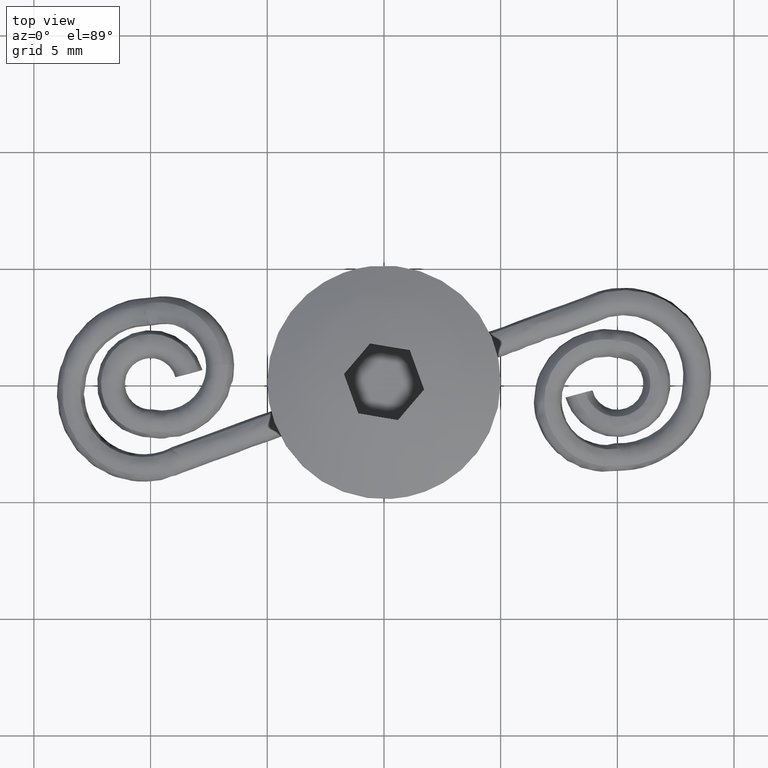
[diagram: clean part render]
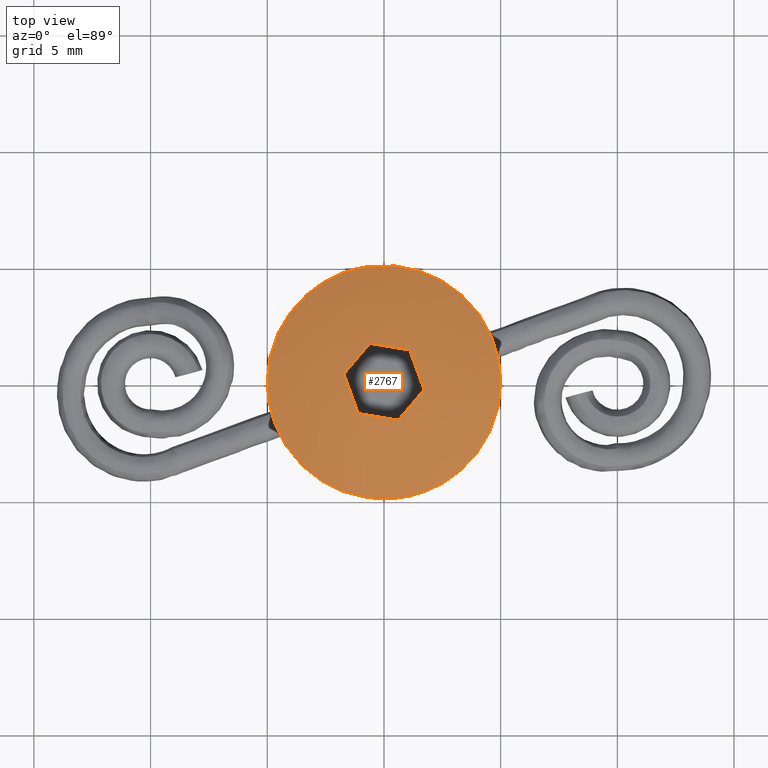
[diagram: same view with one face highlighted and labeled with its STEP entity id]
A machine part, top view. The second image highlights one B-rep face of the part: STEP entity #2767.
In plain terms, the highlighted face is a freeform B-spline surface patch.
Its self-contained STEP definition (entity closure, byte-faithful):
#85=CARTESIAN_POINT('',(-0.590168453726603,4.965047955077417,6.457708000000172));
#86=VERTEX_POINT('',#85);
#92=CARTESIAN_POINT('',(5.0,0.0,6.457708000000171));
#93=VERTEX_POINT('',#92);
#94=CARTESIAN_POINT('',(-0.590168453726603,4.965047955077417,6.457708000000172));
#95=CARTESIAN_POINT('',(-0.296119224105662,5.000000000000001,6.457708000000171));
#96=CARTESIAN_POINT('',(0.0,5.0,6.457708000000171));
#97=CARTESIAN_POINT('',(5.000000000000001,5.000000000000001,6.457708000000172));
#98=CARTESIAN_POINT('',(5.0,0.0,6.457708000000171));
#106=(BOUNDED_CURVE()B_SPLINE_CURVE(2,(#94,#95,#96,#97,#98),.UNSPECIFIED.,.F.,.U.)B_SPLINE_CURVE_WITH_KNOTS((3,2,3),(0.229562566085555,0.250000000000000,0.500000000000000),.UNSPECIFIED.)CURVE()GEOMETRIC_REPRESENTATION_ITEM()RATIONAL_B_SPLINE_CURVE((0.956026935628780,0.976056056786044,1.0,0.707106781186548,1.0))REPRESENTATION_ITEM(''));
#107=EDGE_CURVE('',#86,#93,#106,.T.);
#109=CARTESIAN_POINT('',(0.305236117837679,-4.990674394540674,6.457708000000171));
#110=VERTEX_POINT('',#109);
#111=CARTESIAN_POINT('',(5.0,0.0,6.457708000000171));
#112=CARTESIAN_POINT('',(5.0,-4.703536547378850,6.457708000000170));
#113=CARTESIAN_POINT('',(0.305236117837679,-4.990674394540674,6.457708000000171));
#121=(BOUNDED_CURVE()B_SPLINE_CURVE(2,(#111,#112,#113),.UNSPECIFIED.,.F.,.U.)B_SPLINE_CURVE_WITH_KNOTS((3,3),(0.500000000000000,0.739333189732259),.UNSPECIFIED.)CURVE()GEOMETRIC_REPRESENTATION_ITEM()RATIONAL_B_SPLINE_CURVE((1.0,0.719603726761712,0.976072529228684))REPRESENTATION_ITEM(''));
#122=EDGE_CURVE('',#93,#110,#121,.T.);
#196=CARTESIAN_POINT('',(-5.0,0.0,6.457708000000171));
#197=VERTEX_POINT('',#196);
#198=CARTESIAN_POINT('',(0.305236117837679,-4.990674394540674,6.457708000000171));
#199=CARTESIAN_POINT('',(0.152760517350363,-5.0,6.457708000000172));
#200=CARTESIAN_POINT('',(0.0,-5.0,6.457708000000171));
#201=CARTESIAN_POINT('',(-5.000000000000001,-5.000000000000001,6.457708000000172));
#202=CARTESIAN_POINT('',(-5.0,0.0,6.457708000000171));
#210=(BOUNDED_CURVE()B_SPLINE_CURVE(2,(#198,#199,#200,#201,#202),.UNSPECIFIED.,.F.,.U.)B_SPLINE_CURVE_WITH_KNOTS((3,2,3),(0.739333189732259,0.750000000000000,1.0),.UNSPECIFIED.)CURVE()GEOMETRIC_REPRESENTATION_ITEM()RATIONAL_B_SPLINE_CURVE((0.976072529228684,0.987503054424836,1.0,0.707106781186548,1.0))REPRESENTATION_ITEM(''));
#211=EDGE_CURVE('',#110,#197,#210,.T.);
#213=CARTESIAN_POINT('',(-5.0,0.0,6.457708000000171));
#214=CARTESIAN_POINT('',(-4.999999999999999,4.440875079326284,6.457708000000171));
#215=CARTESIAN_POINT('',(-0.590168453726603,4.965047955077417,6.457708000000172));
#223=(BOUNDED_CURVE()B_SPLINE_CURVE(2,(#213,#214,#215),.UNSPECIFIED.,.F.,.U.)B_SPLINE_CURVE_WITH_KNOTS((3,3),(0.0,0.229562566085555),.UNSPECIFIED.)CURVE()GEOMETRIC_REPRESENTATION_ITEM()RATIONAL_B_SPLINE_CURVE((1.0,0.731050724400503,0.956026935628780))REPRESENTATION_ITEM(''));
#224=EDGE_CURVE('',#197,#86,#223,.T.);
#2462=CARTESIAN_POINT('',(0.598545782993988,-1.644467940845225,7.339379791238771));
#2463=VERTEX_POINT('',#2462);
#2464=CARTESIAN_POINT('',(1.717840347390550,-0.334002042693247,7.339379753943979));
#2465=VERTEX_POINT('',#2464);
#2466=CARTESIAN_POINT('',(0.598545782993986,-1.644467940845224,7.339379791238775));
#2467=CARTESIAN_POINT('',(1.158193066002407,-0.989234990820729,7.397022546847330));
#2468=CARTESIAN_POINT('',(1.717840347390551,-0.334002042693247,7.339379753943983));
#2476=(BOUNDED_CURVE()B_SPLINE_CURVE(2,(#2466,#2467,#2468),.UNSPECIFIED.,.F.,.U.)CURVE()GEOMETRIC_REPRESENTATION_ITEM()QUASI_UNIFORM_CURVE()RATIONAL_B_SPLINE_CURVE((1.0,0.997770086081580,1.0))REPRESENTATION_ITEM(''));
#2477=EDGE_CURVE('',#2463,#2465,#2476,.T.);
#2498=CARTESIAN_POINT('',(-1.101235208299936,-1.360066548372026,7.339381027988420));
#2499=VERTEX_POINT('',#2498);
#2500=CARTESIAN_POINT('',(-1.101235208299934,-1.360066548372025,7.339381027988419));
#2501=CARTESIAN_POINT('',(-0.251344671854642,-1.502267251434857,7.397023149545955));
#2502=CARTESIAN_POINT('',(0.598545782993988,-1.644467940845222,7.339379791238770));
#2510=(BOUNDED_CURVE()B_SPLINE_CURVE(2,(#2500,#2501,#2502),.UNSPECIFIED.,.F.,.U.)CURVE()GEOMETRIC_REPRESENTATION_ITEM()QUASI_UNIFORM_CURVE()RATIONAL_B_SPLINE_CURVE((1.0,0.997770087514857,1.0))REPRESENTATION_ITEM(''));
#2511=EDGE_CURVE('',#2499,#2463,#2510,.T.);
#2528=CARTESIAN_POINT('',(-1.717824513693760,0.333987521037533,7.339382241958940));
#2529=VERTEX_POINT('',#2528);
#2530=CARTESIAN_POINT('',(-1.717824513693759,0.333987521037536,7.339382241958952));
#2531=CARTESIAN_POINT('',(-1.409529846469987,-0.513039553579205,7.402455767530223));
#2532=CARTESIAN_POINT('',(-1.101235208299936,-1.360066548372026,7.339381027988434));
#2540=(BOUNDED_CURVE()B_SPLINE_CURVE(2,(#2530,#2531,#2532),.UNSPECIFIED.,.F.,.U.)CURVE()GEOMETRIC_REPRESENTATION_ITEM()QUASI_UNIFORM_CURVE()RATIONAL_B_SPLINE_CURVE((1.0,0.997560742215219,1.0))REPRESENTATION_ITEM(''));
#2541=EDGE_CURVE('',#2529,#2499,#2540,.T.);
#2558=CARTESIAN_POINT('',(-0.598530233882938,1.644454224518085,7.339382264729601));
#2559=VERTEX_POINT('',#2558);
#2560=CARTESIAN_POINT('',(-0.598530233882939,1.644454224518085,7.339382264729601));
#2561=CARTESIAN_POINT('',(-1.158177374282982,0.989220872198695,7.397025045098943));
#2562=CARTESIAN_POINT('',(-1.717824513693759,0.333987521037534,7.339382241958932));
#2570=(BOUNDED_CURVE()B_SPLINE_CURVE(2,(#2560,#2561,#2562),.UNSPECIFIED.,.F.,.U.)CURVE()GEOMETRIC_REPRESENTATION_ITEM()QUASI_UNIFORM_CURVE()RATIONAL_B_SPLINE_CURVE((1.0,0.997770085834906,1.0))REPRESENTATION_ITEM(''));
#2571=EDGE_CURVE('',#2559,#2529,#2570,.T.);
#2588=CARTESIAN_POINT('',(1.101251343466304,1.360053483696012,7.339381027988420));
#2589=VERTEX_POINT('',#2588);
#2590=CARTESIAN_POINT('',(1.101251343466304,1.360053483696010,7.339381027988425));
#2591=CARTESIAN_POINT('',(0.251360595589766,1.502253847280872,7.397024412229654));
#2592=CARTESIAN_POINT('',(-0.598530233882941,1.644454224518083,7.339382264729609));
#2600=(BOUNDED_CURVE()B_SPLINE_CURVE(2,(#2590,#2591,#2592),.UNSPECIFIED.,.F.,.U.)CURVE()GEOMETRIC_REPRESENTATION_ITEM()QUASI_UNIFORM_CURVE()RATIONAL_B_SPLINE_CURVE((1.0,0.997770086728162,1.0))REPRESENTATION_ITEM(''));
#2601=EDGE_CURVE('',#2589,#2559,#2600,.T.);
#2618=CARTESIAN_POINT('',(1.717840347390551,-0.334002042693246,7.339379753943978));
#2619=CARTESIAN_POINT('',(1.409545497257030,0.513025546340401,7.402454663235786));
#2620=CARTESIAN_POINT('',(1.101251343466304,1.360053483696012,7.339381027988420));
#2628=(BOUNDED_CURVE()B_SPLINE_CURVE(2,(#2618,#2619,#2620),.UNSPECIFIED.,.F.,.U.)CURVE()GEOMETRIC_REPRESENTATION_ITEM()QUASI_UNIFORM_CURVE()RATIONAL_B_SPLINE_CURVE((1.0,0.997560738332390,1.0))REPRESENTATION_ITEM(''));
#2629=EDGE_CURVE('',#2465,#2589,#2628,.T.);
#2729=CARTESIAN_POINT('',(-5.214791082462605,-5.214675901094549,5.163459221320986));
#2730=CARTESIAN_POINT('',(-2.727746851021219,-5.455373204170503,6.257661525468747));
#2731=CARTESIAN_POINT('',(2.727746738931728,-5.455373204170503,6.257661525468747));
#2732=CARTESIAN_POINT('',(5.214790887083911,-5.214675920003387,5.163459307279972));
#2733=CARTESIAN_POINT('',(-5.455482578385319,-2.727681040379543,6.257610958793269));
#2734=CARTESIAN_POINT('',(-2.859739960952675,-2.859676796627249,7.457708000000162));
#2735=CARTESIAN_POINT('',(2.859739843439279,-2.859676796627249,7.457708000000162));
#2736=CARTESIAN_POINT('',(5.455482374901865,-2.727681050726851,6.257611052870342));
#2737=CARTESIAN_POINT('',(-5.455482578385319,2.727696508697612,6.257610958793275));
#2738=CARTESIAN_POINT('',(-2.859739960952675,2.859693013475775,7.457708000000165));
#2739=CARTESIAN_POINT('',(2.859739843439279,2.859693013475775,7.457708000000165));
#2740=CARTESIAN_POINT('',(5.455482374901865,2.727696519044978,6.257611052870348));
#2741=CARTESIAN_POINT('',(-5.214788473036477,5.214702863447954,5.163447359214620));
#2742=CARTESIAN_POINT('',(-2.727745423083422,5.455401285041028,6.257648543035655));
#2743=CARTESIAN_POINT('',(2.727745310993990,5.455401285041028,6.257648543035655));
#2744=CARTESIAN_POINT('',(5.214788277657876,5.214702882356884,5.163447445173524));
#2752=(BOUNDED_SURFACE()B_SPLINE_SURFACE(2,2,((#2729,#2733,#2737,#2741),(#2730,#2734,#2738,#2742),(#2731,#2735,#2739,#2743),(#2732,#2736,#2740,#2744)),.UNSPECIFIED.,.F.,.F.,.U.)B_SPLINE_SURFACE_WITH_KNOTS((3,1,3),(3,1,3),(0.0,5.584365832451882,11.168731435429130),(0.0,5.584242488124909,11.168516643749721),.UNSPECIFIED.)GEOMETRIC_REPRESENTATION_ITEM()RATIONAL_B_SPLINE_SURFACE(((1.096780260505549,1.048391199078518,1.048391199078518,1.096780809323029),(1.048389061427031,1.0,1.0,1.048389610244510),(1.048389061427031,1.0,1.0,1.048389610244510),(1.096780256528535,1.048391195101504,1.048391195101504,1.096780805346014)))REPRESENTATION_ITEM('')SURFACE());
#2753=ORIENTED_EDGE('',*,*,#211,.F.);
#2754=ORIENTED_EDGE('',*,*,#122,.F.);
#2755=ORIENTED_EDGE('',*,*,#107,.F.);
#2756=ORIENTED_EDGE('',*,*,#224,.F.);
#2757=EDGE_LOOP('',(#2753,#2754,#2755,#2756));
#2758=FACE_OUTER_BOUND('',#2757,.T.);
#2759=ORIENTED_EDGE('',*,*,#2629,.F.);
#2760=ORIENTED_EDGE('',*,*,#2477,.F.);
#2761=ORIENTED_EDGE('',*,*,#2511,.F.);
#2762=ORIENTED_EDGE('',*,*,#2541,.F.);
#2763=ORIENTED_EDGE('',*,*,#2571,.F.);
#2764=ORIENTED_EDGE('',*,*,#2601,.F.);
#2765=EDGE_LOOP('',(#2759,#2760,#2761,#2762,#2763,#2764));
#2766=FACE_BOUND('',#2765,.T.);
#2767=ADVANCED_FACE('',(#2758,#2766),#2752,.T.);